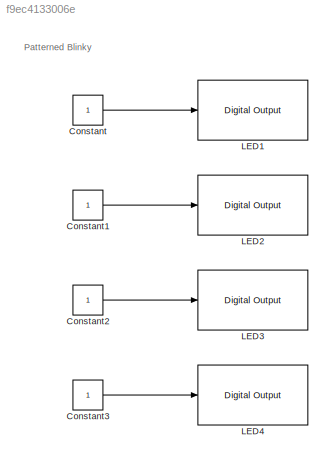
MODEL slx_f9ec4133006e
KIND model
CONFIG AbsTol = auto
CONFIG EnableMultiTasking = on
CONFIG FixedStep = auto
CONFIG MaxStep = auto
CONFIG MinStep = auto
CONFIG RelTol = 1e-3
CONFIG SampleTimeConstraint = Unconstrained
CONFIG Solver = FixedStepDiscrete
CONFIG SolverName = FixedStepDiscrete
CONFIG StartTime = 0.0
CONFIG StopTime = 10.0
BLOCK [Constant] Constant
  SampleTime = 0.5
BLOCK [Constant] Constant1
  SampleTime = 0.6
BLOCK [Constant] Constant2
  SampleTime = 0.7
BLOCK [Constant] Constant3
  SampleTime = 0.8
BLOCK [Reference] LED1  REF=c2802xlib/Digital Output
  Ports = [1]
  SourceBlock = c2802xlib/Digital Output
  SourceType = C2802x GPIO Digital Output
  UserDataPersistent = on
BLOCK [Reference] LED2  REF=c2802xlib/Digital Output
  Ports = [1]
  SourceBlock = c2802xlib/Digital Output
  SourceType = C2802x GPIO Digital Output
  UserDataPersistent = on
BLOCK [Reference] LED3  REF=c2802xlib/Digital Output
  Ports = [1]
  SourceBlock = c2802xlib/Digital Output
  SourceType = C2802x GPIO Digital Output
  UserDataPersistent = on
BLOCK [Reference] LED4  REF=c2802xlib/Digital Output
  Ports = [1]
  SourceBlock = c2802xlib/Digital Output
  SourceType = C2802x GPIO Digital Output
  UserDataPersistent = on
ANNOTATION (root): Patterned Blinky
LINE Constant1:1 -> LED2:1
LINE Constant2:1 -> LED3:1
LINE Constant3:1 -> LED4:1
LINE Constant:1 -> LED1:1
